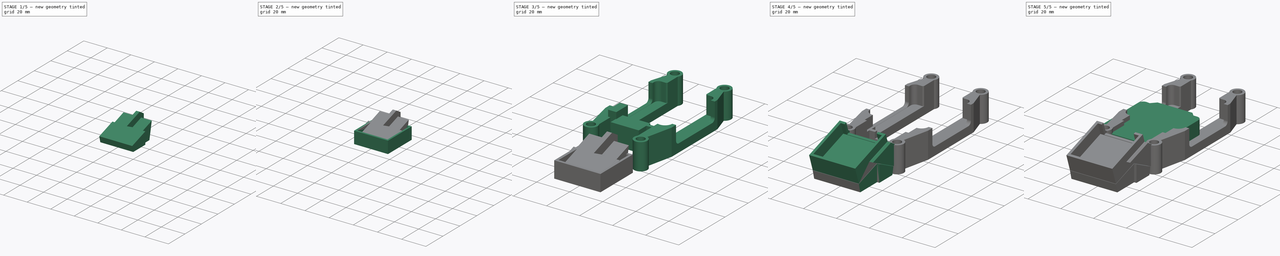
[diagram: build sequence overview — one tinted view per stage of 5, left to right]
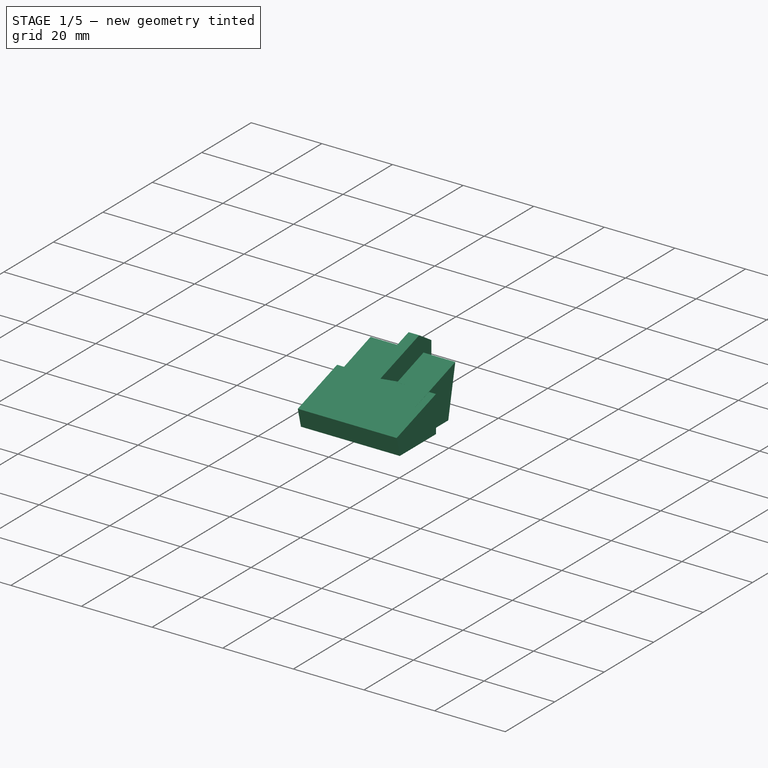
[diagram: stage 1 of 5 — iso view after this stage's code; geometry added in this stage tinted green]
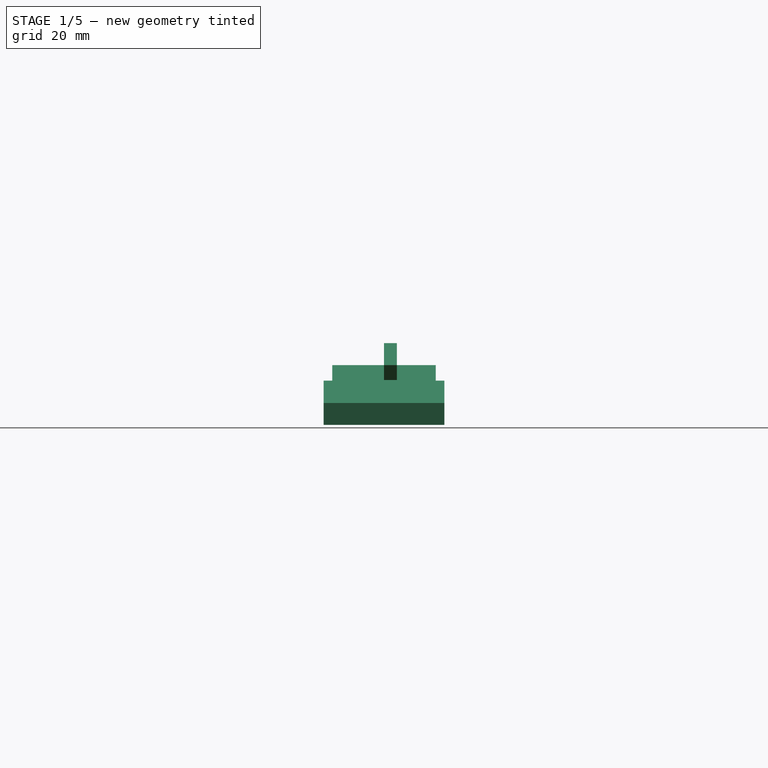
[diagram: stage 1 of 5 — front view after this stage's code; geometry added in this stage tinted green]
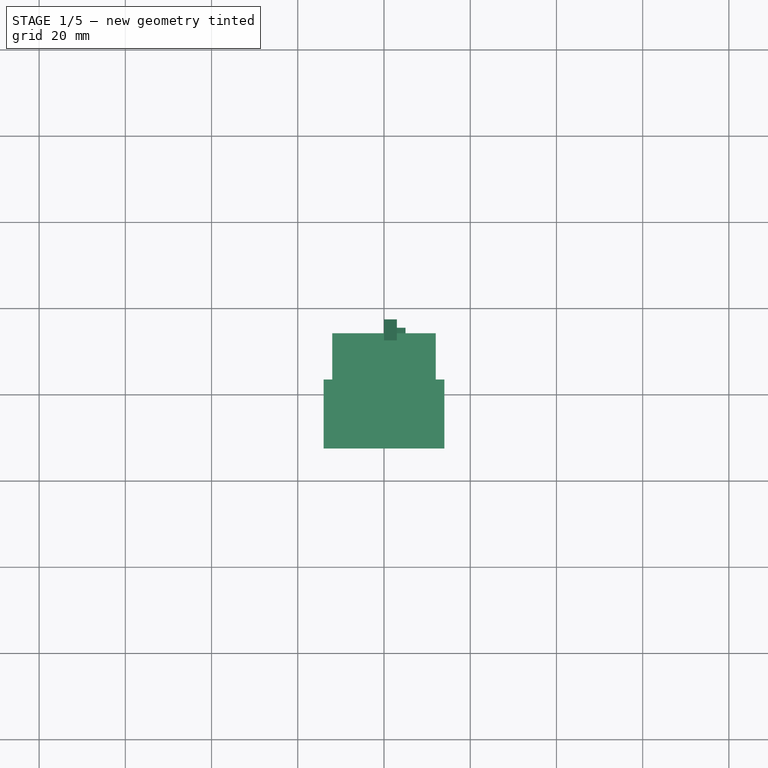
[diagram: stage 1 of 5 — top view after this stage's code; geometry added in this stage tinted green]
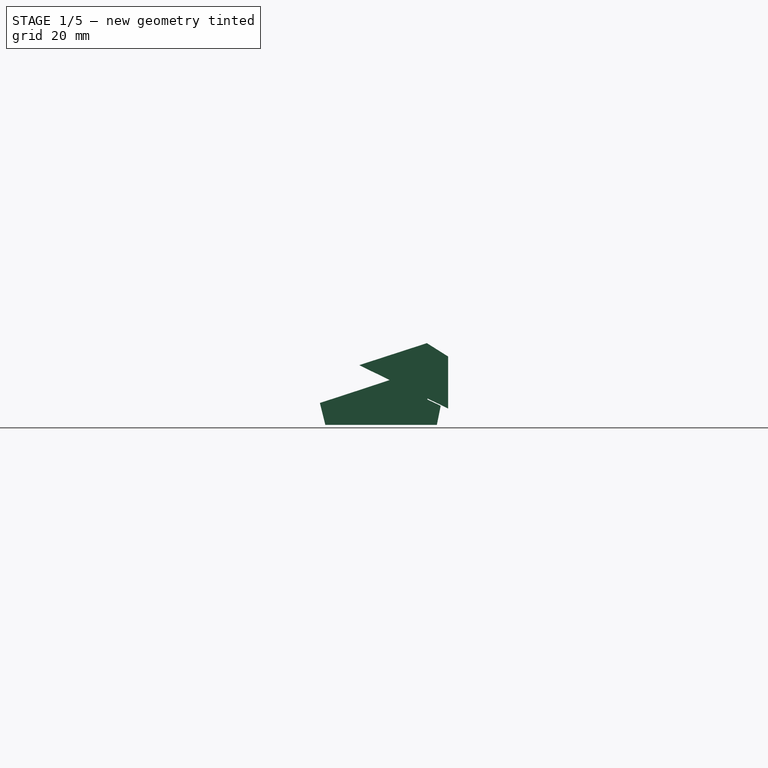
[diagram: stage 1 of 5 — right view after this stage's code; geometry added in this stage tinted green]
FCSTD DOCUMENT  (FreeCAD 0.19R24267 +99 (Git))
Label: fr7天空端
License: All rights reserved
LicenseURL: http://en.wikipedia.org/wiki/All_rights_reserved
objects: Sketcher::SketchObject×17, PartDesign::Pad×10, PartDesign::Body×9, PartDesign::Pocket×7, Part::Box×3, Part::Cut×3, PartDesign::Chamfer×2, Part::MultiFuse×1, Part::Fuse×1
note: 72 computed .brp shape members not serialized (recipe doc carries the construction recipe); baked Part::Feature solids carry a one-line shape summary decoded from their .brp

FEATURE [PartDesign::Body] Body002
  Group = -> [Sketch008,Pad002,Sketch009,Pad003,Sketch010,Pocket006]
  Origin = -> Origin002
  Placement = pos=(-0.6,-1.55281,28.8247) rot=(1,0,0;0.321141rad)
  Tip = -> Pocket006
FEATURE [Sketcher::SketchObject] Sketch011
  FullyConstrained = false
  MapMode = 5
  Placement = pos=(0,0,0) rot=(0.57735,0.57735,0.57735;2.0944rad)
  Support = -> [YZ_Plane003]
  sketch-geometry (4):
    g0: LineSegment StartX=-47.6987 StartY=18.9488 StartZ=0 EndX=-42.7761 EndY=15.8464 EndZ=0
    g1: LineSegment StartX=-42.7761 StartY=15.8464 StartZ=0 EndX=-42.7761 EndY=3.78236 EndZ=0
    g2: LineSegment StartX=-42.7761 StartY=3.78236 StartZ=0 EndX=-63.4121 EndY=13.8474 EndZ=0
    g3: LineSegment StartX=-63.4121 StartY=13.8474 StartZ=0 EndX=-47.6987 EndY=18.9488 EndZ=0
  constraints (5):
    c: Coincident(g0,g1)
    c: Vertical(g1)
    c: Coincident(g1,g2)
    c: Coincident(g2,g3)
    c: Coincident(g3,g0)
FEATURE [PartDesign::Pad] Pad004
  Direction = (1,1,1)
  Length = 3
  Length2 = 100
  Placement = pos=(0,0,0) rot=(0.57735,0.57735,0.57735;2.0944rad)
  Profile = -> Sketch011
  Type = 0
FEATURE [PartDesign::Body] Body003
  Group = -> [Sketch011,Pad004,Chamfer001]
  Origin = -> Origin003
  Placement = pos=(12.8,0,0) rot=(0,0,1;0rad)
  Tip = -> Chamfer001
FEATURE [Sketcher::SketchObject] Sketch013
  FullyConstrained = false
  MapMode = 5
  Placement = pos=(0,0,0) rot=(0.57735,0.57735,0.57735;2.0944rad)
  Support = -> [YZ_Plane005]
  sketch-geometry (6):
    g0: LineSegment StartX=-72.5116 StartY=5.02141 StartZ=0 EndX=-45.9556 EndY=13.8595 EndZ=0
    g1: LineSegment StartX=-45.9556 StartY=13.8595 StartZ=0 EndX=-48.8078 EndY=0 EndZ=0
    g2: LineSegment StartX=-48.8078 StartY=0 StartZ=0 EndX=-71.2568 EndY=0 EndZ=0
    g3: LineSegment StartX=-71.2568 StartY=0 StartZ=0 EndX=-72.5116 EndY=5.02141 EndZ=0
    g4: LineSegment StartX=-72.5629 StartY=5.20434 StartZ=0 EndX=-72.5116 EndY=5.02141 EndZ=0
    g5: LineSegment StartX=-45.9874 StartY=14.0468 StartZ=0 EndX=-45.9556 EndY=13.8595 EndZ=0
  constraints (10):
    c: Coincident(g0,g1)
    c: PointOnObject(g1,g-1)
    c: Coincident(g1,g2)
    c: PointOnObject(g2,g-1)
    c: Coincident(g2,g3)
    c: Coincident(g3,g0)
    c: Coincident(g4,g0)
    c: Distance(g4) = 0.19
    c: Coincident(g5,g0)
    c: Distance(g5) = 0.19
FEATURE [PartDesign::Pad] Pad006
  Direction = (1,1,1)
  Length = 24
  Length2 = 100
  Midplane = true
  Placement = pos=(0,0,0) rot=(0.57735,0.57735,0.57735;2.0944rad)
  Profile = -> Sketch013
  Type = 0
FEATURE [PartDesign::Body] Body005
  Group = -> [Sketch013,Pad006]
  Origin = -> Origin005
  Placement = pos=(0.2,0,0) rot=(0,0,1;0rad)
  Tip = -> Pad006
FEATURE [Sketcher::SketchObject] Sketch014
  FullyConstrained = false
  MapMode = 5
  Placement = pos=(0,0,0) rot=(0.57735,0.57735,0.57735;2.0944rad)
  Support = -> [YZ_Plane006]
  sketch-geometry (4):
    g0: LineSegment StartX=-56.6369 StartY=10.3194 StartZ=0 EndX=-44.5035 EndY=4.39802 EndZ=0
    g1: LineSegment StartX=-44.5035 StartY=4.39802 StartZ=0 EndX=-45.399 EndY=0 EndZ=0
    g2: LineSegment StartX=-45.399 StartY=0 StartZ=0 EndX=-56.6369 EndY=0 EndZ=0
    g3: LineSegment StartX=-56.6369 StartY=0 StartZ=0 EndX=-56.6369 EndY=10.3194 EndZ=0
  constraints (7):
    c: Coincident(g0,g1)
    c: PointOnObject(g1,g-1)
    c: Coincident(g1,g2)
    c: PointOnObject(g2,g-1)
    c: Coincident(g2,g3)
    c: Coincident(g3,g0)
    c: Vertical(g3)
FEATURE [PartDesign::Pad] Pad007
  Direction = (1,1,1)
  Length = 5
  Length2 = 100
  Placement = pos=(0,0,0) rot=(0.57735,0.57735,0.57735;2.0944rad)
  Profile = -> Sketch014
  Type = 0
FEATURE [PartDesign::Body] Body006
  Group = -> [Sketch014,Pad007]
  Origin = -> Origin006
  Placement = pos=(10.8,0,0) rot=(0,0,1;0rad)
  Tip = -> Pad007
FEATURE [Sketcher::SketchObject] Sketch015
  FullyConstrained = false
  MapMode = 5
  Placement = pos=(0,0,0) rot=(0.57735,0.57735,0.57735;2.0944rad)
  Support = -> [YZ_Plane007]
  sketch-geometry (4):
    g0: LineSegment StartX=-56.6369 StartY=10.3194 StartZ=0 EndX=-44.5035 EndY=4.39802 EndZ=0
    g1: LineSegment StartX=-44.5035 StartY=4.39802 StartZ=0 EndX=-45.399 EndY=0 EndZ=0
    g2: LineSegment StartX=-45.399 StartY=0 StartZ=0 EndX=-56.6369 EndY=0 EndZ=0
    g3: LineSegment StartX=-56.6369 StartY=0 StartZ=0 EndX=-56.6369 EndY=10.3194 EndZ=0
  constraints (7):
    c: Coincident(g0,g1)
    c: PointOnObject(g1,g-1)
    c: Coincident(g1,g2)
    c: PointOnObject(g2,g-1)
    c: Coincident(g2,g3)
    c: Coincident(g3,g0)
    c: Vertical(g3)
FEATURE [PartDesign::Pad] Pad008
  Direction = (1,1,1)
  Length = 5
  Length2 = 100
  Placement = pos=(0,0,0) rot=(0.57735,0.57735,0.57735;2.0944rad)
  Profile = -> Sketch015
  Type = 0
FEATURE [Sketcher::SketchObject] Sketch016
  FullyConstrained = false
  MapMode = 5
  Placement = pos=(0,0,0) rot=(0.57735,0.57735,0.57735;2.0944rad)
  Support = -> [YZ_Plane008]
  sketch-geometry (4):
    g0: LineSegment StartX=-72.5319 StartY=5.07364 StartZ=0 EndX=-56.6317 EndY=10.2659 EndZ=0
    g1: LineSegment StartX=-56.6317 StartY=10.2659 StartZ=0 EndX=-56.6317 EndY=0 EndZ=0
    g2: LineSegment StartX=-56.6317 StartY=0 StartZ=0 EndX=-71.2588 EndY=0 EndZ=0
    g3: LineSegment StartX=-71.2588 StartY=0 StartZ=0 EndX=-72.5319 EndY=5.07364 EndZ=0
  constraints (7):
    c: Coincident(g0,g1)
    c: PointOnObject(g1,g-1)
    c: Vertical(g1)
    c: Coincident(g1,g2)
    c: PointOnObject(g2,g-1)
    c: Coincident(g2,g3)
    c: Coincident(g3,g0)
FEATURE [PartDesign::Pad] Pad009
  Direction = (1,1,1)
  Length = 28
  Length2 = 100
  Midplane = true
  Placement = pos=(0,0,0) rot=(0.57735,0.57735,0.57735;2.0944rad)
  Profile = -> Sketch016
  Type = 0
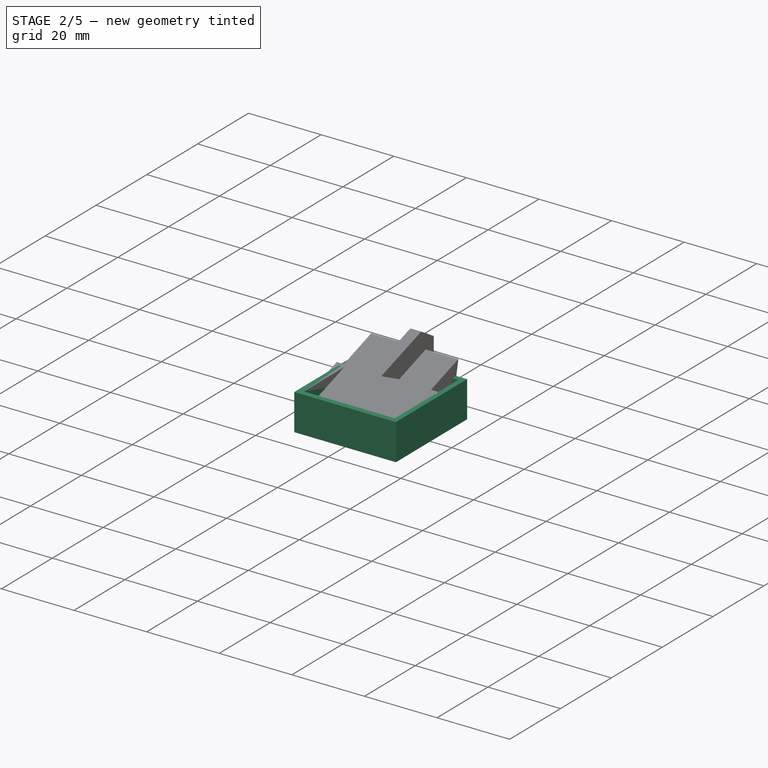
[diagram: stage 2 of 5 — iso view after this stage's code; geometry added in this stage tinted green]
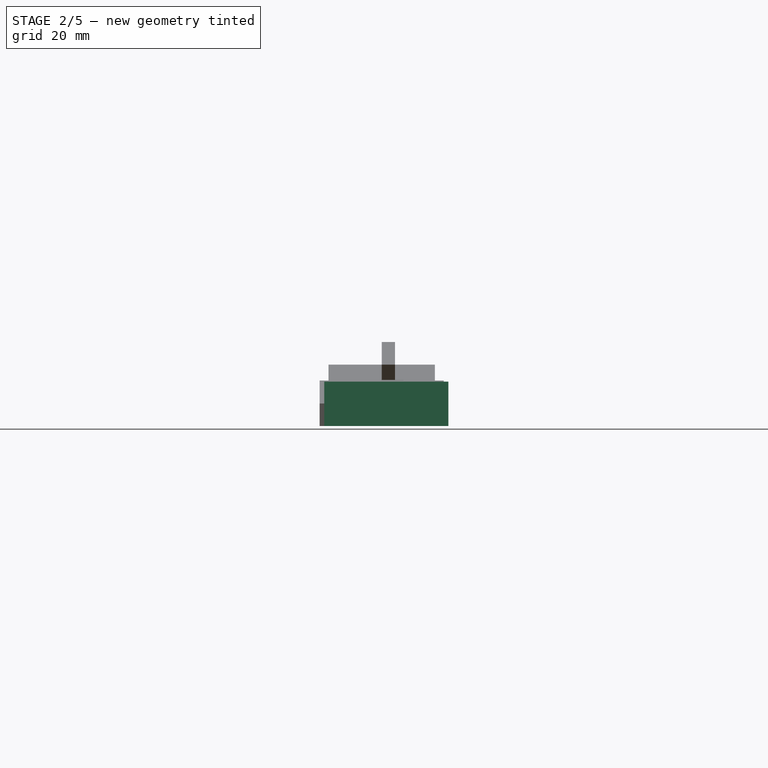
[diagram: stage 2 of 5 — front view after this stage's code; geometry added in this stage tinted green]
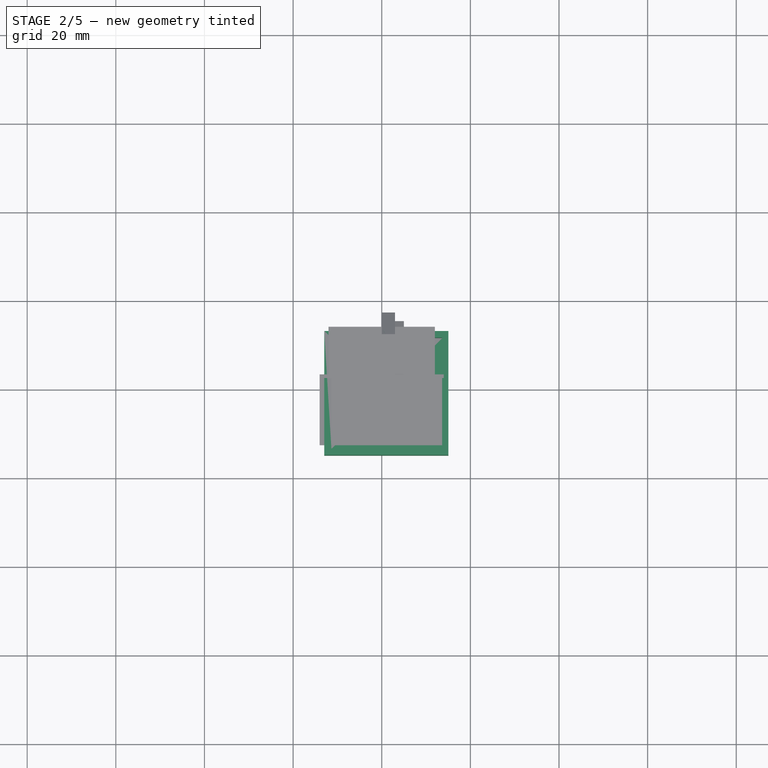
[diagram: stage 2 of 5 — top view after this stage's code; geometry added in this stage tinted green]
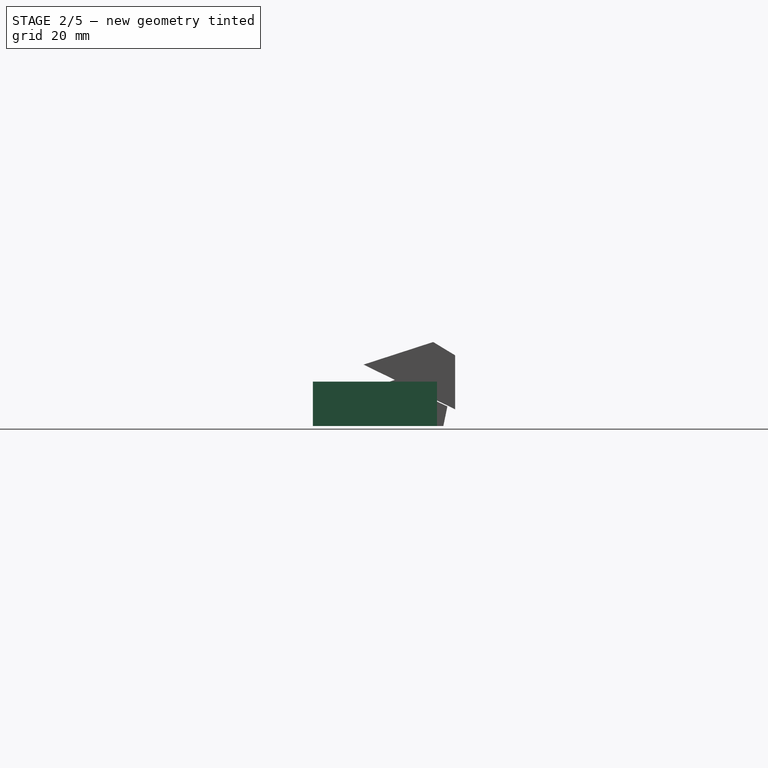
[diagram: stage 2 of 5 — right view after this stage's code; geometry added in this stage tinted green]
FEATURE [Sketcher::SketchObject] Sketch008
  FullyConstrained = false
  MapMode = 5
  Support = -> [XY_Plane002]
  sketch-geometry (8):
    g0: LineSegment StartX=-12.975 StartY=-46.8317 StartZ=0 EndX=15.025 EndY=-46.8317 EndZ=0
    g1: LineSegment StartX=15.025 StartY=-46.8317 StartZ=0 EndX=15.025 EndY=-74.8317 EndZ=0
    g2: LineSegment StartX=15.025 StartY=-74.8317 StartZ=0 EndX=-12.975 EndY=-74.8317 EndZ=0
    g3: LineSegment StartX=-12.975 StartY=-74.8317 StartZ=0 EndX=-12.975 EndY=-46.8317 EndZ=0
    g4: LineSegment StartX=-11.3635 StartY=-48.3289 StartZ=0 EndX=13.6365 EndY=-48.3289 EndZ=0
    g5: LineSegment StartX=13.6365 StartY=-48.3289 StartZ=0 EndX=13.6365 EndY=-73.3289 EndZ=0
    g6: LineSegment StartX=13.6365 StartY=-73.3289 StartZ=0 EndX=-11.3635 EndY=-73.3289 EndZ=0
    g7: LineSegment StartX=-11.3635 StartY=-73.3289 StartZ=0 EndX=-11.3635 EndY=-48.3289 EndZ=0
  constraints (20):
    c: Coincident(g0,g1)
    c: Coincident(g1,g2)
    c: Coincident(g2,g3)
    c: Coincident(g3,g0)
    c: Horizontal(g0)
    c: Horizontal(g2)
    c: Vertical(g1)
    c: Vertical(g3)
    c: Distance(g0) = 28
    c: Equal(g0,g3)
    c: Coincident(g4,g5)
    c: Coincident(g5,g6)
    c: Coincident(g6,g7)
    c: Coincident(g7,g4)
    c: Horizontal(g4)
    c: Horizontal(g6)
    c: Vertical(g5)
    c: Vertical(g7)
    c: Equal(g4,g7)
    c: Distance(g7) = 25
FEATURE [PartDesign::Pad] Pad002
  Direction = (1,1,1)
  Length = 10
  Length2 = 100
  Profile = -> Sketch008
  Type = 0
FEATURE [Sketcher::SketchObject] Sketch009
  FullyConstrained = false
  MapMode = 5
  Placement = pos=(0,0,0) rot=(1,0,0;3.14159rad)
  Support = -> [Pad002]
  sketch-geometry (4):
    g0: LineSegment StartX=-12.3427 StartY=74.2679 StartZ=0 EndX=14.2463 EndY=74.2679 EndZ=0
    g1: LineSegment StartX=14.2463 StartY=74.2679 StartZ=0 EndX=14.2463 EndY=48.0895 EndZ=0
    g2: LineSegment StartX=14.2463 StartY=48.0895 StartZ=0 EndX=-12.3427 EndY=48.0895 EndZ=0
    g3: LineSegment StartX=-12.3427 StartY=48.0895 StartZ=0 EndX=-12.3427 EndY=74.2679 EndZ=0
  constraints (8):
    c: Coincident(g0,g1)
    c: Coincident(g1,g2)
    c: Coincident(g2,g3)
    c: Coincident(g3,g0)
    c: Horizontal(g0)
    c: Horizontal(g2)
    c: Vertical(g1)
    c: Vertical(g3)
FEATURE [PartDesign::Pad] Pad003
  BaseFeature = -> Pad002
  Direction = (1,1,1)
  Length = 3
  Length2 = 100
  Profile = -> Sketch009
  Reversed = true
  Type = 0
FEATURE [Sketcher::SketchObject] Sketch010
  FullyConstrained = false
  MapMode = 5
  Placement = pos=(0,-48.3289,0) rot=(1,0,0;1.5708rad)
  Support = -> [Pad003]
  sketch-geometry (4):
    g0: LineSegment StartX=-8.96205 StartY=10.582 StartZ=0 EndX=10.4407 EndY=10.582 EndZ=0
    g1: LineSegment StartX=10.4407 StartY=10.582 StartZ=0 EndX=10.4407 EndY=3.22347 EndZ=0
    g2: LineSegment StartX=10.4407 StartY=3.22347 StartZ=0 EndX=-8.96205 EndY=3.22347 EndZ=0
    g3: LineSegment StartX=-8.96205 StartY=3.22347 StartZ=0 EndX=-8.96205 EndY=10.582 EndZ=0
  constraints (8):
    c: Coincident(g0,g1)
    c: Coincident(g1,g2)
    c: Coincident(g2,g3)
    c: Coincident(g3,g0)
    c: Horizontal(g0)
    c: Horizontal(g2)
    c: Vertical(g1)
    c: Vertical(g3)
FEATURE [PartDesign::Pocket] Pocket006
  BaseFeature = -> Pad003
  Length = 5
  Length2 = 100
  Profile = -> Sketch010
  Type = 0
FEATURE [Sketcher::SketchObject] Sketch012
  FullyConstrained = false
  MapMode = 5
  Placement = pos=(0,0,0) rot=(0.57735,0.57735,0.57735;2.0944rad)
  Support = -> [YZ_Plane004]
  sketch-geometry (4):
    g0: LineSegment StartX=-47.6987 StartY=18.9488 StartZ=0 EndX=-42.7598 EndY=15.959 EndZ=0
    g1: LineSegment StartX=-42.7598 StartY=15.959 StartZ=0 EndX=-42.7598 EndY=3.78236 EndZ=0
    g2: LineSegment StartX=-42.7598 StartY=3.78236 StartZ=0 EndX=-63.4121 EndY=13.8474 EndZ=0
    g3: LineSegment StartX=-63.4121 StartY=13.8474 StartZ=0 EndX=-47.6987 EndY=18.9488 EndZ=0
  constraints (5):
    c: Coincident(g0,g1)
    c: Vertical(g1)
    c: Coincident(g1,g2)
    c: Coincident(g2,g3)
    c: Coincident(g3,g0)
FEATURE [PartDesign::Pad] Pad005
  Direction = (1,1,1)
  Length = 3
  Length2 = 100
  Placement = pos=(0,0,0) rot=(0.57735,0.57735,0.57735;2.0944rad)
  Profile = -> Sketch012
  Type = 0
FEATURE [PartDesign::Chamfer] Chamfer
  Angle = 45
  Base = -> Pad005 [Edge11]
  BaseFeature = -> Pad005
  ChamferType = 0
  FlipDirection = false
  Placement = pos=(0,0,0) rot=(0.57735,0.57735,0.57735;2.0944rad)
  Size = 1
  Size2 = 1
  SupportTransform = false
FEATURE [PartDesign::Body] Body004
  Group = -> [Sketch012,Pad005,Chamfer]
  Origin = -> Origin004
  Placement = pos=(-15,0,0) rot=(0,0,1;0rad)
  Tip = -> Chamfer
FEATURE [PartDesign::Chamfer] Chamfer001
  Angle = 45
  Base = -> Pad004 [Edge12]
  BaseFeature = -> Pad004
  ChamferType = 0
  FlipDirection = false
  Placement = pos=(0,0,0) rot=(0.57735,0.57735,0.57735;2.0944rad)
  Size = 1
  Size2 = 1
  SupportTransform = false
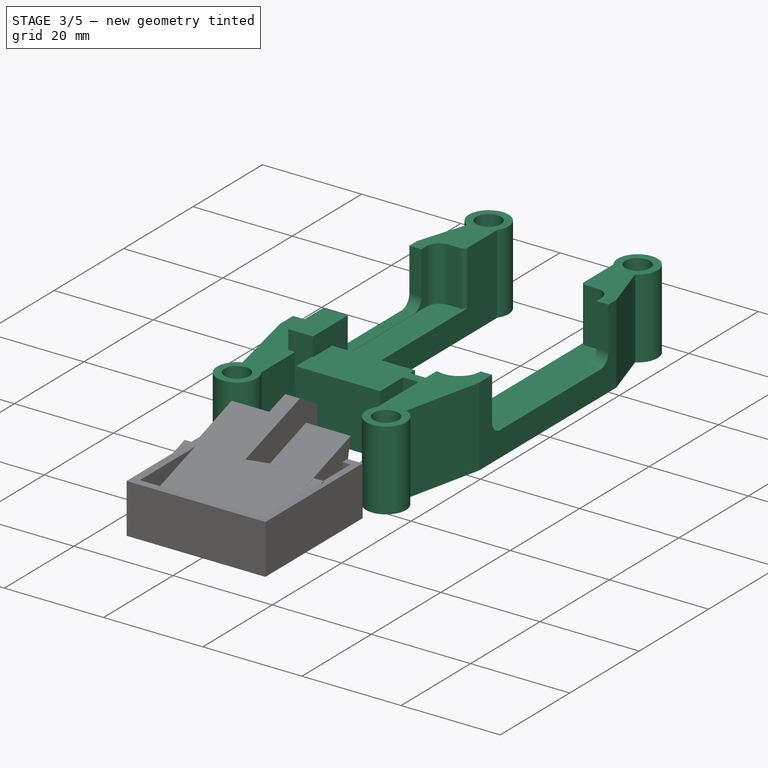
[diagram: stage 3 of 5 — iso view after this stage's code; geometry added in this stage tinted green]
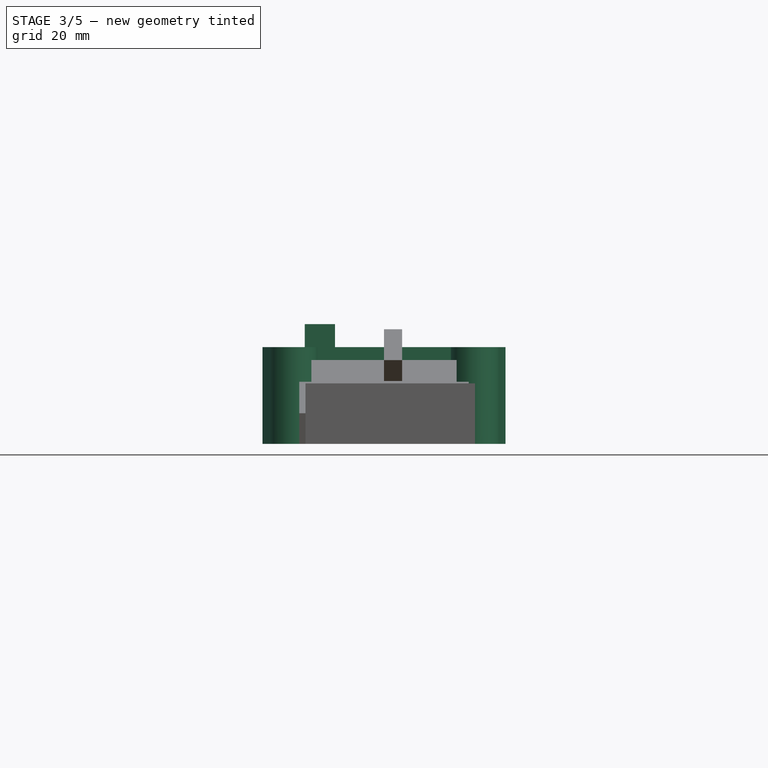
[diagram: stage 3 of 5 — front view after this stage's code; geometry added in this stage tinted green]
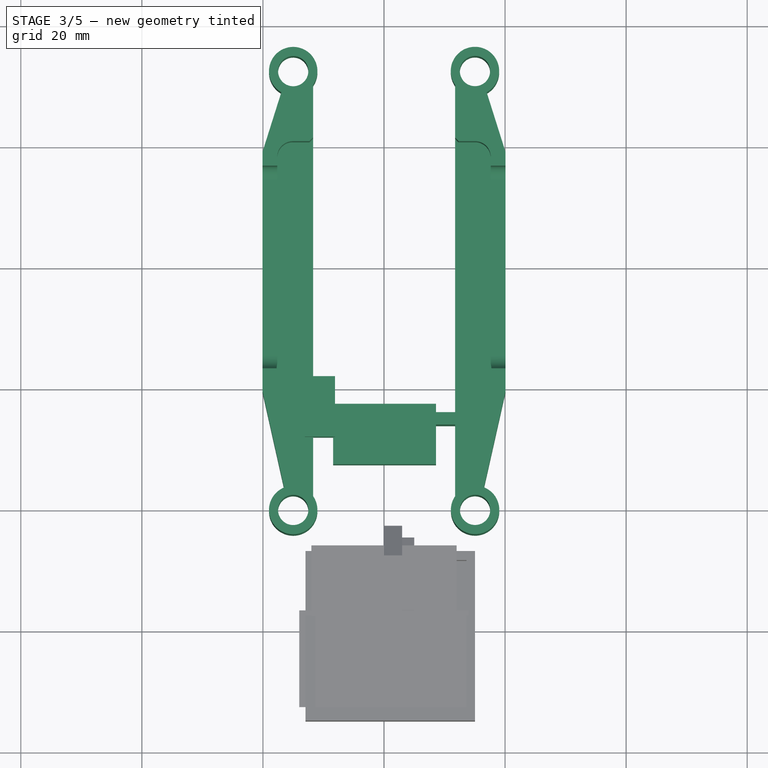
[diagram: stage 3 of 5 — top view after this stage's code; geometry added in this stage tinted green]
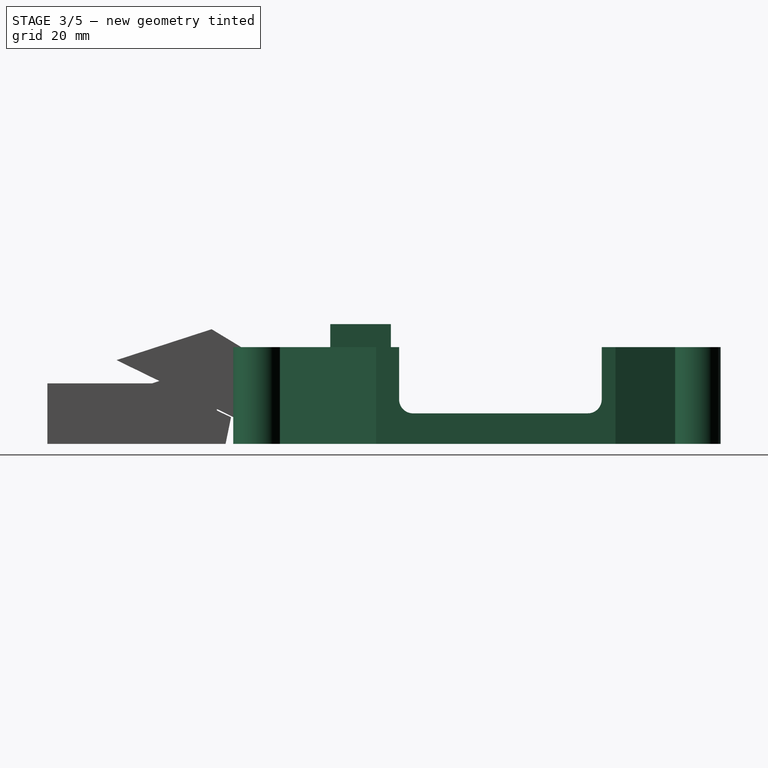
[diagram: stage 3 of 5 — right view after this stage's code; geometry added in this stage tinted green]
FEATURE [PartDesign::Body] Body
  Group = -> [Sketch,Pad,Sketch001,Pocket,Sketch002,Pocket001,Sketch003,Pocket002,Sketch005,Pocket003]
  Origin = -> Origin
  Placement = pos=(3.8,19.3,2.6) rot=(0,0,1;0rad)
  Tip = -> Pocket003
FEATURE [PartDesign::Pad] Pad001
  Direction = (1,1,1)
  Length = 16
  Length2 = 100
  Profile = -> Sketch004
  Type = 0
FEATURE [Sketcher::SketchObject] Sketch006
  FullyConstrained = false
  MapMode = 5
  Placement = pos=(0,0,16) rot=(0,0,1;0rad)
  Support = -> [Pad001]
  sketch-geometry (14):
    g0: LineSegment StartX=-12.3144 StartY=20.7871 StartZ=0 EndX=-15.0529 EndY=20.7871 EndZ=0
    g1: ArcOfCircle CenterX=-15.0529 CenterY=18.2049 CenterZ=0 NormalX=0 NormalY=0 NormalZ=1 AngleXU=0 Radius=2.58217 StartAngle=1.5708 EndAngle=3.10821
    g2: LineSegment StartX=-17.6336 StartY=18.2911 StartZ=0 EndX=-17.6336 EndY=-15.7698 EndZ=0
    g3: ArcOfCircle CenterX=-13.4219 CenterY=-16.7377 CenterZ=0 NormalX=0 NormalY=0 NormalZ=1 AngleXU=0 Radius=4.32148 StartAngle=2.91571 EndAngle=5.00241
    g4: LineSegment StartX=-12.186 StartY=-20.8787 StartZ=0 EndX=0 EndY=-20.8787 EndZ=0
    g5: LineSegment StartX=-12.3144 StartY=20.7871 StartZ=0 EndX=-9.77579 EndY=23.3546 EndZ=0
    g6: LineSegment StartX=-9.77579 StartY=23.3546 StartZ=0 EndX=0 EndY=23.3546 EndZ=0
    g7: LineSegment StartX=12.3144 StartY=20.7871 StartZ=0 EndX=15.0529 EndY=20.7871 EndZ=0
    g8: ArcOfCircle CenterX=15.0529 CenterY=18.2049 CenterZ=0 NormalX=0 NormalY=0 NormalZ=1 AngleXU=0 Radius=2.58217 StartAngle=0.0333807 EndAngle=1.5708
    g9: LineSegment StartX=17.6336 StartY=18.2911 StartZ=0 EndX=17.6336 EndY=-15.7698 EndZ=0
    g10: ArcOfCircle CenterX=13.4219 CenterY=-16.7377 CenterZ=0 NormalX=0 NormalY=0 NormalZ=1 AngleXU=0 Radius=4.32148 StartAngle=4.42237 EndAngle=6.50907
    g11: LineSegment StartX=12.186 StartY=-20.8787 StartZ=0 EndX=0 EndY=-20.8787 EndZ=0
    g12: LineSegment StartX=12.3144 StartY=20.7871 StartZ=0 EndX=9.77579 EndY=23.3546 EndZ=0
    g13: LineSegment StartX=9.77579 StartY=23.3546 StartZ=0 EndX=0 EndY=23.3546 EndZ=0
  constraints (22):
    c: Horizontal(g0)
    c: Tangent(g0,g1) = -1.5708
    c: Coincident(g1,g2)
    c: Vertical(g2)
    c: Coincident(g3,g4)
    c: PointOnObject(g4,g-2)
    c: Horizontal(g4)
    c: Coincident(g2,g3)
    c: Coincident(g0,g5)
    c: Coincident(g5,g6)
    c: PointOnObject(g6,g-2)
    c: Horizontal(g6)
    c: Horizontal(g7)
    c: Tangent(g7,g8) = 1.5708
    c: Coincident(g8,g9)
    c: Vertical(g9)
    c: Coincident(g10,g11)
    c: Horizontal(g11)
    c: Coincident(g9,g10)
    c: Coincident(g7,g12)
    c: Coincident(g12,g13)
    c: Horizontal(g13)
FEATURE [PartDesign::Pocket] Pocket004
  BaseFeature = -> Pad001
  Length = 11
  Length2 = 100
  Profile = -> Sketch006
  Type = 0
FEATURE [Sketcher::SketchObject] Sketch007
  FullyConstrained = false
  MapMode = 5
  Placement = pos=(20.0704,0,0) rot=(0.57735,0.57735,0.57735;2.0944rad)
  Support = -> [Pad001]
  sketch-geometry (6):
    g0: LineSegment StartX=-16.7363 StartY=16.5759 StartZ=0 EndX=16.7363 EndY=16.5759 EndZ=0
    g1: LineSegment StartX=-16.7363 StartY=16.5759 StartZ=0 EndX=-16.7363 EndY=7.34546 EndZ=0
    g2: ArcOfCircle CenterX=-14.4464 CenterY=7.34546 CenterZ=0 NormalX=0 NormalY=0 NormalZ=1 AngleXU=0 Radius=2.28993 StartAngle=3.14159 EndAngle=4.71239
    g3: LineSegment StartX=-14.4464 StartY=5.05552 StartZ=0 EndX=14.4464 EndY=5.05552 EndZ=0
    g4: ArcOfCircle CenterX=14.4464 CenterY=7.34546 CenterZ=0 NormalX=0 NormalY=0 NormalZ=1 AngleXU=0 Radius=2.28993 StartAngle=4.71239 EndAngle=6.28319
    g5: LineSegment StartX=16.7363 StartY=7.34546 StartZ=0 EndX=16.7363 EndY=16.5759 EndZ=0
  constraints (12):
    c: Coincident(g0,g1)
    c: Vertical(g1)
    c: Tangent(g1,g2) = -1.5708
    c: Horizontal(g3)
    c: Tangent(g3,g4) = -1.5708
    c: Coincident(g4,g5)
    c: Coincident(g5,g0)
    c: Vertical(g5)
    c: Tangent(g2,g3) = -1.5708
    c: Tangent(g4,g5) = -1.5708
    c: Horizontal(g4,g2)
    c: Symmetric(g0,g0,g-2)
FEATURE [PartDesign::Pocket] Pocket005
  BaseFeature = -> Pocket004
  Length = 56
  Length2 = 100
  Profile = -> Sketch007
  Type = 0
FEATURE [PartDesign::Body] Body001
  Group = -> [Sketch004,Pad001,Sketch006,Pocket004,Sketch007,Pocket005]
  Origin = -> Origin001
  Tip = -> Pocket005
FEATURE [Part::Box] Box  label="立方体"
  AttacherType = Attacher::AttachEngine3D
  Height = 10
  Length = 5
  Placement = pos=(-13.1,-28.1,9.8) rot=(0,0,1;0rad)
  Width = 10
FEATURE [Part::Box] Box002  label="立方体002"
  AttacherType = Attacher::AttachEngine3D
  Height = 10
  Length = 17
  Placement = pos=(-8.4,-32.6,6) rot=(0,0,1;0rad)
  Width = 10
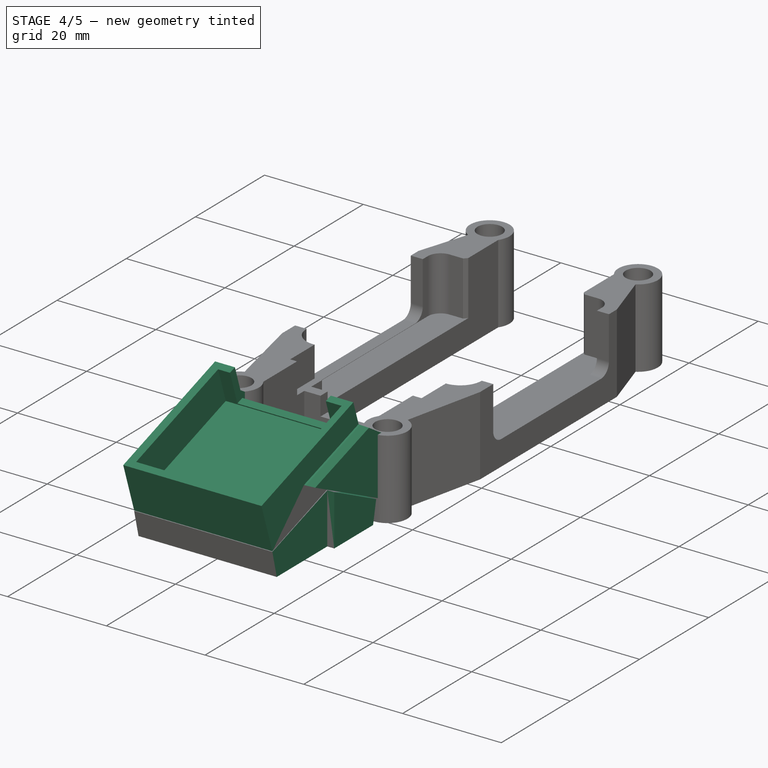
[diagram: stage 4 of 5 — iso view after this stage's code; geometry added in this stage tinted green]
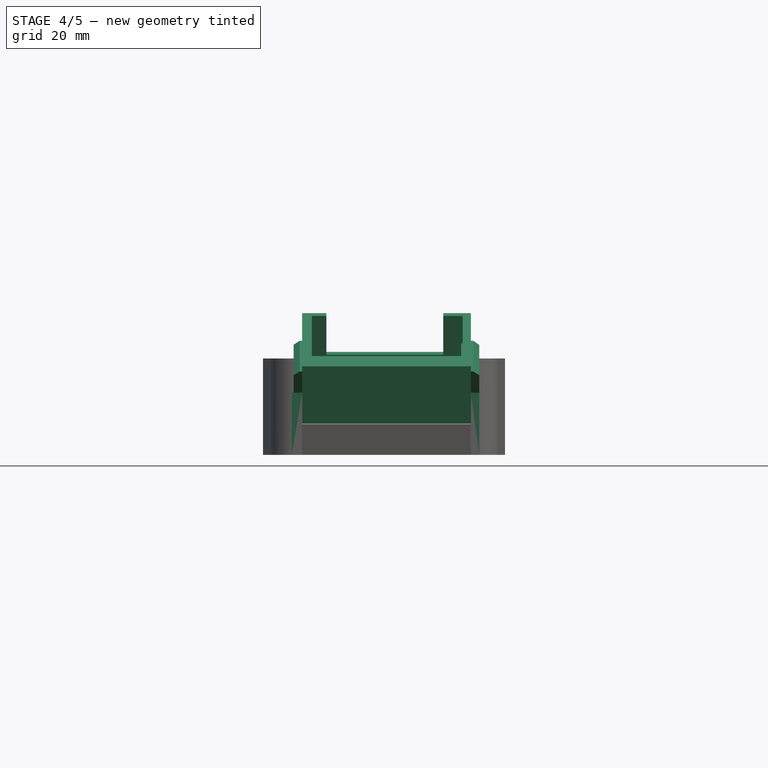
[diagram: stage 4 of 5 — front view after this stage's code; geometry added in this stage tinted green]
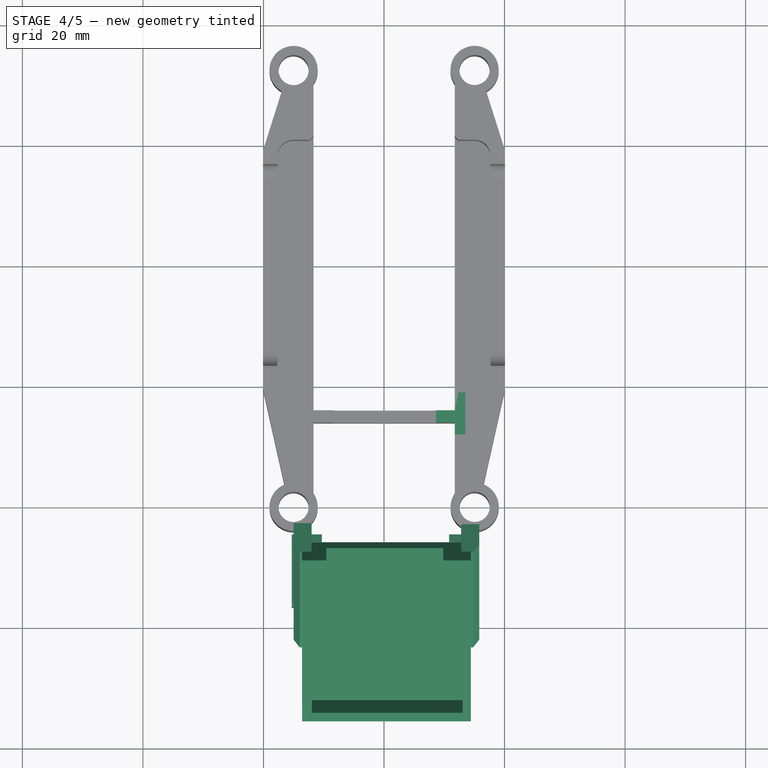
[diagram: stage 4 of 5 — top view after this stage's code; geometry added in this stage tinted green]
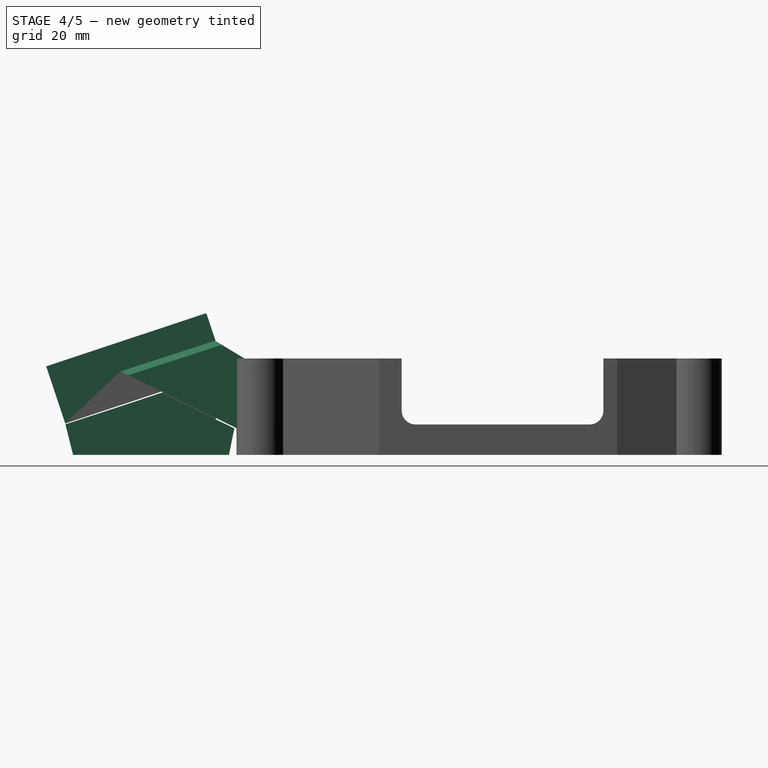
[diagram: stage 4 of 5 — right view after this stage's code; geometry added in this stage tinted green]
FEATURE [Part::Box] Box001  label="立方体001"
  AttacherType = Attacher::AttachEngine3D
  Height = 10
  Length = 5
  Placement = pos=(8.5,-28.1,10.2) rot=(0,0,1;0rad)
  Width = 10
FEATURE [Part::Cut] Cut
  Base = -> Body001
  Tool = -> Box
FEATURE [Part::Cut] Cut001
  Base = -> Cut
  Tool = -> Box001
FEATURE [Part::Cut] Cut002
  Base = -> Cut001
  Tool = -> Box002
FEATURE [PartDesign::Body] Body007
  Group = -> [Sketch015,Pad008]
  Origin = -> Origin007
  Placement = pos=(-15.3,0,0) rot=(0,0,1;0rad)
  Tip = -> Pad008
FEATURE [Part::MultiFuse] Fusion
  Shapes = -> [Body007,Body006,Body005,Body004,Body003,Body002,Cut002]
FEATURE [PartDesign::Body] Body008
  Group = -> [Sketch016,Pad009]
  Origin = -> Origin008
  Placement = pos=(0.4,0,0) rot=(0,0,1;0rad)
  Tip = -> Pad009
FEATURE [Part::Fuse] Fusion001
  Base = -> Fusion
  Tool = -> Body008
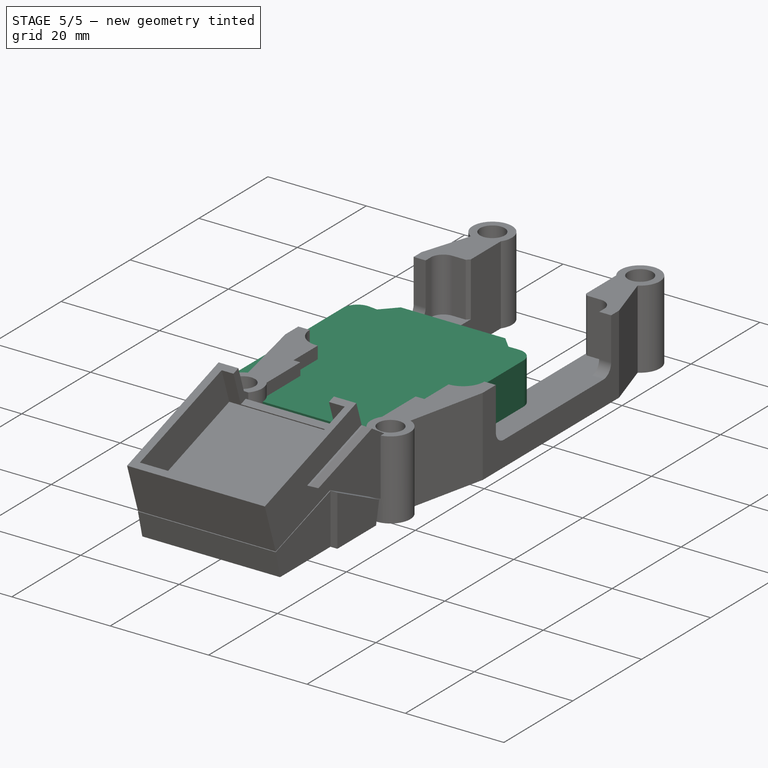
[diagram: stage 5 of 5 — iso view after this stage's code; geometry added in this stage tinted green]
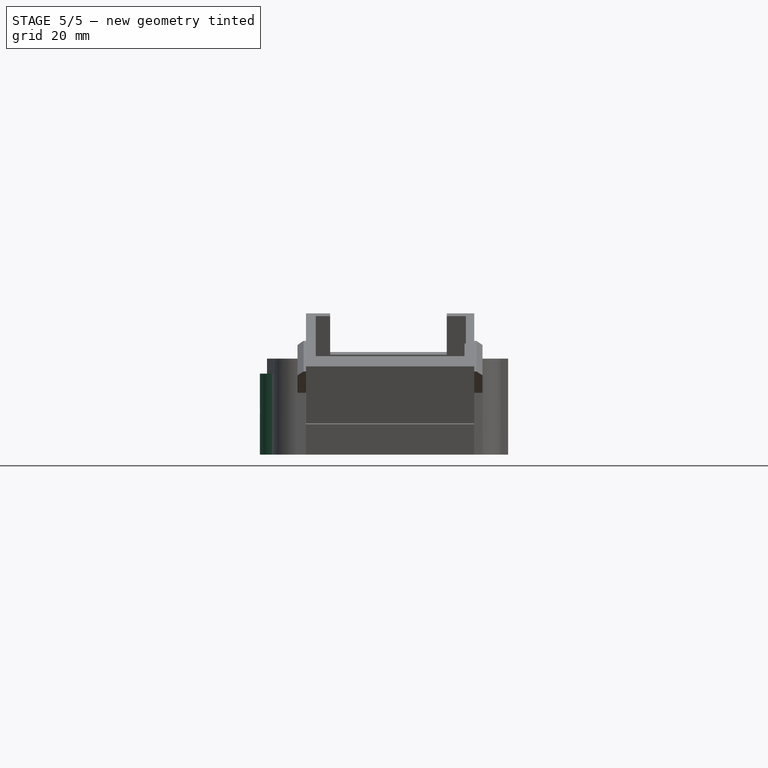
[diagram: stage 5 of 5 — front view after this stage's code; geometry added in this stage tinted green]
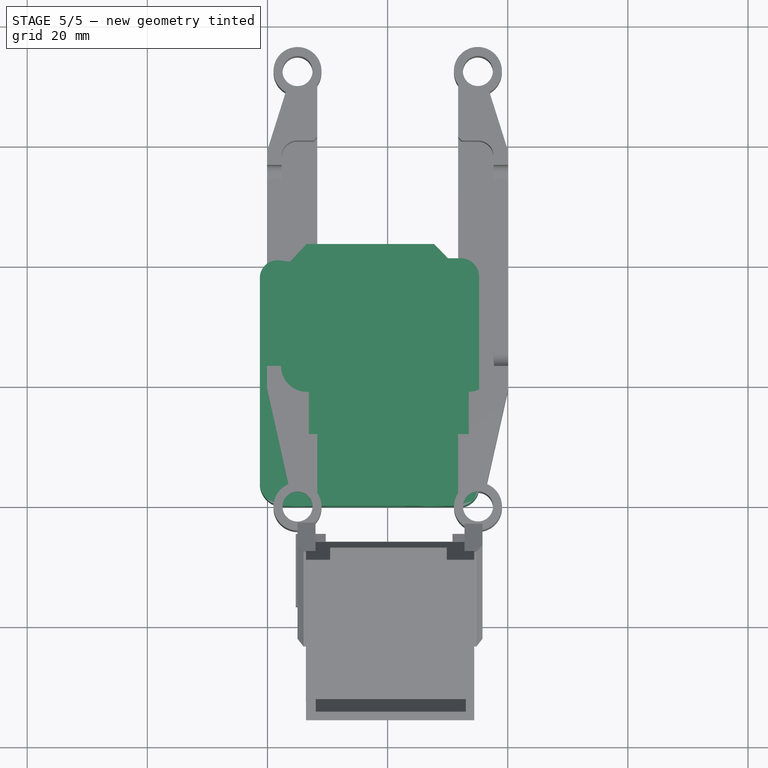
[diagram: stage 5 of 5 — top view after this stage's code; geometry added in this stage tinted green]
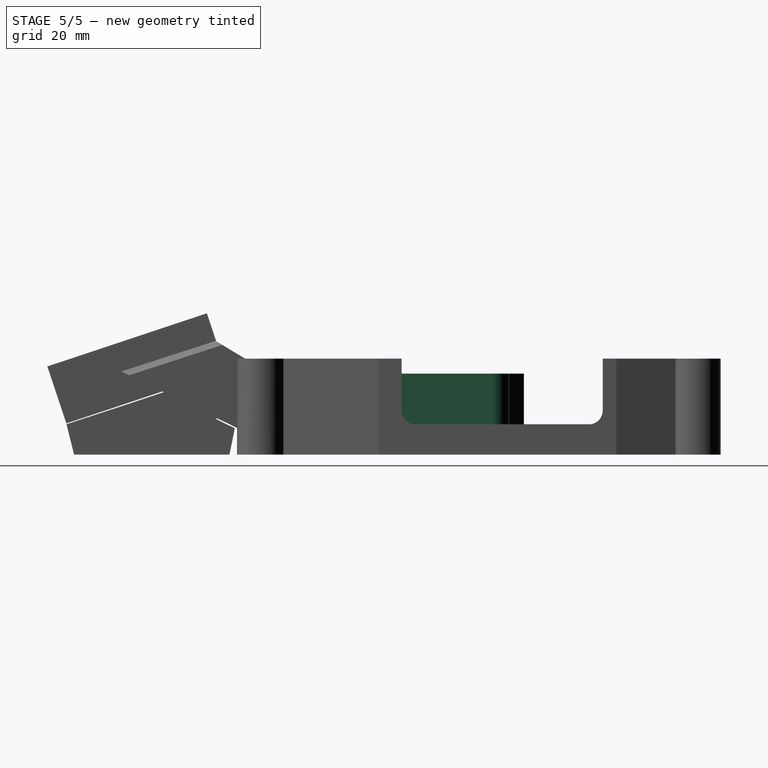
[diagram: stage 5 of 5 — right view after this stage's code; geometry added in this stage tinted green]
FEATURE [Sketcher::SketchObject] Sketch
  FullyConstrained = false
  sketch-geometry (12):
    g0: LineSegment StartX=-16.2545 StartY=0.670954 StartZ=0 EndX=-13.4843 EndY=3.61239 EndZ=0
    g1: LineSegment StartX=-13.4843 StartY=3.61239 StartZ=0 EndX=7.73943 EndY=3.61239 EndZ=0
    g2: LineSegment StartX=7.73943 StartY=3.61239 StartZ=0 EndX=10.0415 EndY=1.23935 EndZ=0
    g3: LineSegment StartX=10.0415 StartY=1.23935 StartZ=0 EndX=12.187 EndY=1.23935 EndZ=0
    g4: ArcOfCircle CenterX=12.187 CenterY=-1.80178 CenterZ=0 NormalX=0 NormalY=0 NormalZ=1 AngleXU=0 Radius=3.04113 StartAngle=1e-16 EndAngle=1.5708
    g5: LineSegment StartX=15.2281 StartY=-1.80178 StartZ=0 EndX=15.2281 EndY=-36.8194 EndZ=0
    g6: ArcOfCircle CenterX=11.9794 CenterY=-36.8194 CenterZ=0 NormalX=0 NormalY=0 NormalZ=1 AngleXU=0 Radius=3.24868 StartAngle=4.48937 EndAngle=6.28319
    g7: LineSegment StartX=11.2609 StartY=-39.9876 StartZ=0 EndX=-17.4198 EndY=-39.9876 EndZ=0
    g8: ArcOfCircle CenterX=-17.4198 CenterY=-36.1289 CenterZ=0 NormalX=0 NormalY=0 NormalZ=1 AngleXU=0 Radius=3.85872 StartAngle=3.20298 EndAngle=4.71239
    g9: LineSegment StartX=-21.2713 StartY=-36.3656 StartZ=0 EndX=-21.2713 EndY=-2.01894 EndZ=0
    g10: ArcOfCircle CenterX=-18.3529 CenterY=-2.01894 CenterZ=0 NormalX=0 NormalY=0 NormalZ=1 AngleXU=0 Radius=2.91836 StartAngle=1.45273 EndAngle=3.14159
    g11: LineSegment StartX=-18.0091 StartY=0.879098 StartZ=0 EndX=-16.2545 EndY=0.670954 EndZ=0
  constraints (19):
    c: Coincident(g0,g1)
    c: Horizontal(g1)
    c: Coincident(g1,g2)
    c: Coincident(g2,g3)
    c: Horizontal(g3)
    c: Tangent(g3,g4) = 1.5708
    c: Tangent(g4,g5) = 1.5708
    c: Tangent(g5,g6) = 1.5708
    c: Coincident(g6,g7)
    c: Horizontal(g7)
    c: Tangent(g7,g8) = 1.5708
    c: Coincident(g8,g9)
    c: Tangent(g9,g10) = 1.5708
    c: Tangent(g10,g11) = 1.5708
    c: Coincident(g11,g0)
    c: Distance(g9,g4) = 36.5
    c: Vertical(g5)
    c: Vertical(g9)
    c: Distance(g1,g7) = 43.6
FEATURE [PartDesign::Pad] Pad
  Direction = (1,1,1)
  Length = 13.5
  Length2 = 100
  Profile = -> Sketch
  Type = 0
FEATURE [Sketcher::SketchObject] Sketch001
  FullyConstrained = false
  MapMode = 5
  Placement = pos=(15.2281,0,0) rot=(0.57735,0.57735,0.57735;2.0944rad)
  Support = -> [Pad]
  sketch-geometry (6):
    g0: LineSegment StartX=-32.706 StartY=6.74946 StartZ=0 EndX=-19.3355 EndY=6.74946 EndZ=0
    g1: LineSegment StartX=-19.3355 StartY=6.74946 StartZ=0 EndX=-19.3355 EndY=3.98859 EndZ=0
    g2: LineSegment StartX=-19.3355 StartY=3.98859 StartZ=0 EndX=-32.706 EndY=3.98859 EndZ=0
    g3: LineSegment StartX=-32.706 StartY=3.98859 StartZ=0 EndX=-32.706 EndY=6.74946 EndZ=0
    g4: Circle CenterX=-33.9263 CenterY=8.6445 CenterZ=0 NormalX=0 NormalY=0 NormalZ=1 AngleXU=0 Radius=0.768806
    g5: Circle CenterX=-25.7876 CenterY=8.54229 CenterZ=0 NormalX=0 NormalY=0 NormalZ=1 AngleXU=0 Radius=0.768806
  constraints (8):
    c: Coincident(g0,g1)
    c: Coincident(g1,g2)
    c: Coincident(g2,g3)
    c: Coincident(g3,g0)
    c: Horizontal(g0)
    c: Horizontal(g2)
    c: Vertical(g1)
    c: Vertical(g3)
FEATURE [PartDesign::Pocket] Pocket
  BaseFeature = -> Pad
  Length = 1
  Length2 = 100
  Profile = -> Sketch001
  Type = 0
FEATURE [Sketcher::SketchObject] Sketch002
  FullyConstrained = false
  MapMode = 5
  Placement = pos=(-21.2713,0,0) rot=(0.57735,-0.57735,-0.57735;2.0944rad)
  Support = -> [Pocket]
  sketch-geometry (4):
    g0: ArcOfCircle CenterX=28.9267 CenterY=7.59628 CenterZ=0 NormalX=0 NormalY=0 NormalZ=1 AngleXU=0 Radius=1.76997 StartAngle=1.5708 EndAngle=4.71239
    g1: ArcOfCircle CenterX=35.1338 CenterY=7.59628 CenterZ=0 NormalX=0 NormalY=0 NormalZ=1 AngleXU=0 Radius=1.76997 StartAngle=4.71239 EndAngle=7.85398
    g2: LineSegment StartX=28.9267 StartY=5.82631 StartZ=0 EndX=35.1338 EndY=5.82631 EndZ=0
    g3: LineSegment StartX=28.9267 StartY=9.36626 StartZ=0 EndX=35.1338 EndY=9.36626 EndZ=0
  constraints (6):
    c: Tangent(g0,g3) = 1.5708
    c: Tangent(g0,g2) = -1.5708
    c: Tangent(g2,g1) = -1.5708
    c: Tangent(g3,g1) = 1.5708
    c: Horizontal(g2)
    c: Equal(g0,g1)
FEATURE [PartDesign::Pocket] Pocket001
  BaseFeature = -> Pocket
  Length = 1
  Length2 = 100
  Profile = -> Sketch002
  Type = 0
FEATURE [Sketcher::SketchObject] Sketch003
  ExternalGeometry = -> [Pocket001]
  FullyConstrained = true
  MapMode = 5
  Placement = pos=(0,3.61239,0) rot=(0,0.707107,0.707107;3.14159rad)
  Support = -> [Pocket001]
  sketch-geometry (8):
    g0: LineSegment StartX=0.12242 StartY=9.5 StartZ=0 EndX=5.62242 EndY=9.5 EndZ=0
    g1: LineSegment StartX=5.62242 StartY=9.5 StartZ=0 EndX=5.62242 EndY=4 EndZ=0
    g2: LineSegment StartX=5.62242 StartY=4 StartZ=0 EndX=0.12242 EndY=4 EndZ=0
    g3: LineSegment StartX=0.12242 StartY=4 StartZ=0 EndX=0.12242 EndY=9.5 EndZ=0
    g4: LineSegment StartX=5.62242 StartY=9.5 StartZ=0 EndX=5.62242 EndY=13.5 EndZ=0
    g5: LineSegment StartX=5.62242 StartY=4 StartZ=0 EndX=5.62242 EndY=0 EndZ=0
    g6: LineSegment StartX=5.62242 StartY=4 StartZ=0 EndX=13.4843 EndY=4 EndZ=0
    g7: LineSegment StartX=0.12242 StartY=4 StartZ=0 EndX=-7.73943 EndY=4 EndZ=0
  constraints (24):
    c: Coincident(g0,g1)
    c: Coincident(g1,g2)
    c: Coincident(g2,g3)
    c: Coincident(g3,g0)
    c: Horizontal(g0)
    c: Horizontal(g2)
    c: Vertical(g1)
    c: Vertical(g3)
    c: Distance(g3) = 5.5
    c: Distance(g2) = 5.5
    c: Coincident(g4,g0)
    c: PointOnObject(g4,g-5)
    c: Vertical(g4)
    c: Coincident(g5,g1)
    c: PointOnObject(g5,g-6)
    c: Vertical(g5)
    c: Coincident(g6,g1)
    c: PointOnObject(g6,g-4)
    c: Horizontal(g6)
    c: Coincident(g7,g2)
    c: PointOnObject(g7,g-3)
    c: Horizontal(g7)
    c: Equal(g7,g6)
    c: Equal(g4,g5)
FEATURE [PartDesign::Pocket] Pocket002
  BaseFeature = -> Pocket001
  Length = 1
  Length2 = 100
  Profile = -> Sketch003
  Type = 0
FEATURE [Sketcher::SketchObject] Sketch004
  FullyConstrained = false
  MapMode = 5
  Support = -> [XY_Plane001]
  sketch-geometry (24):
    g0: Circle CenterX=-15 CenterY=32.3587 CenterZ=0 NormalX=0 NormalY=0 NormalZ=1 AngleXU=0 Radius=2.5
    g1: ArcOfCircle CenterX=-15 CenterY=32.3587 CenterZ=0 NormalX=0 NormalY=0 NormalZ=1 AngleXU=0 Radius=4 StartAngle=5.68134 EndAngle=10.484
    g2: Circle CenterX=-15 CenterY=-40.1413 CenterZ=0 NormalX=0 NormalY=0 NormalZ=1 AngleXU=0 Radius=2.5
    g3: ArcOfCircle CenterX=-15 CenterY=-40.1413 CenterZ=0 NormalX=0 NormalY=0 NormalZ=1 AngleXU=0 Radius=4 StartAngle=1.95683 EndAngle=6.88503
    g4: GeomPoint X=-9.65632 Y=22.8595 Z=0
    g5: GeomPoint X=-15.0638 Y=29.8595 Z=0
    g6: LineSegment StartX=-16.9584 StartY=28.8709 StartZ=0 EndX=-20.0704 EndY=19.0207 EndZ=0
    g7: LineSegment StartX=-20.0704 StartY=19.0207 StartZ=0 EndX=-20.0704 EndY=-20.521 EndZ=0
    g8: LineSegment StartX=-20.0704 StartY=-20.521 StartZ=0 EndX=-16.506 EndY=-36.4357 EndZ=0
    g9: LineSegment StartX=-11.7028 StartY=-37.8767 StartZ=0 EndX=-11.7028 EndY=-26.0339 EndZ=0
    g10: Circle CenterX=15.027 CenterY=32.3737 CenterZ=0 NormalX=0 NormalY=0 NormalZ=1 AngleXU=0 Radius=2.5
    g11: ArcOfCircle CenterX=15.027 CenterY=32.3737 CenterZ=0 NormalX=0 NormalY=0 NormalZ=1 AngleXU=0 Radius=4 StartAngle=5.2163 EndAngle=10.0312
    g12: Circle CenterX=15.0476 CenterY=-40.1263 CenterZ=0 NormalX=0 NormalY=0 NormalZ=1 AngleXU=0 Radius=2.5
    g13: ArcOfCircle CenterX=15.0476 CenterY=-40.1263 CenterZ=0 NormalX=0 NormalY=0 NormalZ=1 AngleXU=0 Radius=4 StartAngle=2.54429 EndAngle=7.48076
    g14: GeomPoint X=9.65632 Y=22.8595 Z=0
    g15: GeomPoint X=15.0638 Y=29.874 Z=0
    g16: LineSegment StartX=16.9584 StartY=28.8709 StartZ=0 EndX=20.0704 EndY=19.0207 EndZ=0
    g17: LineSegment StartX=20.0704 StartY=19.0207 StartZ=0 EndX=20.0704 EndY=-20.521 EndZ=0
    g18: LineSegment StartX=20.0704 StartY=-20.521 StartZ=0 EndX=16.506 EndY=-36.4017 EndZ=0
    g19: LineSegment StartX=11.7402 StartY=-37.8767 StartZ=0 EndX=11.7402 EndY=-26.0339 EndZ=0
    g20: LineSegment StartX=-11.7028 StartY=-26.0339 StartZ=0 EndX=11.7402 EndY=-26.0339 EndZ=0
    g21: LineSegment StartX=-11.7028 StartY=-23.9924 StartZ=0 EndX=11.7402 EndY=-23.9924 EndZ=0
    g22: LineSegment StartX=-11.7028 StartY=-23.9924 StartZ=0 EndX=-11.7028 EndY=30.094 EndZ=0
    g23: LineSegment StartX=11.7402 StartY=-23.9924 StartZ=0 EndX=11.7402 EndY=30.094 EndZ=0
  constraints (45):
    c: Coincident(g1,g0)
    c: Diameter(g0) = 5
    c: Diameter(g1) = 8
    c: DistanceX(g-2,g0) = -15
    c: Coincident(g3,g2)
    c: Equal(g0,g2) = 5
    c: Equal(g1,g3) = 8
    c: Distance(g2,g0) = 72.5
    c: Vertical(g0,g2)
    c: DistanceX(g4) = -9.65632
    c: DistanceY(g4) = 22.8595
    c: PointOnObject(g5,g0)
    c: DistanceY(g4,g5) = 7
    c: Coincident(g6,g7)
    c: Vertical(g7)
    c: Coincident(g7,g8)
    c: Vertical(g9)
    c: Coincident(g3,g8)
    c: Coincident(g3,g9)
    c: Coincident(g1,g22)
    c: Coincident(g1,g6)
    c: Coincident(g11,g10)
    c: Diameter(g10) = 5
    c: Diameter(g11) = 8
    c: Coincident(g13,g12)
    c: Equal(g10,g12) = 5
    c: Equal(g11,g13) = 8
    c: Distance(g12,g10) = 72.5
    c: PointOnObject(g15,g10)
    c: Coincident(g16,g17)
    c: Vertical(g17)
    c: Coincident(g17,g18)
    c: Vertical(g19)
    c: Coincident(g13,g18)
    c: Coincident(g13,g19)
    c: Coincident(g11,g23)
    c: Coincident(g11,g16)
    c: Horizontal(g20)
    c: Horizontal(g21)
    c: Coincident(g9,g20)
    c: Coincident(g22,g21)
    c: Tangent(g9,g22)
    c: Coincident(g19,g20)
    c: Coincident(g23,g21)
    c: Tangent(g19,g23)
FEATURE [Sketcher::SketchObject] Sketch005
  FullyConstrained = false
  MapMode = 5
  Placement = pos=(0,-39.9876,0) rot=(1,0,0;1.5708rad)
  Support = -> [Pocket002]
  sketch-geometry (6):
    g0: Circle CenterX=-14.5861 CenterY=10.8405 CenterZ=0 NormalX=0 NormalY=0 NormalZ=1 AngleXU=0 Radius=2.33187
    g1: Circle CenterX=7.46376 CenterY=10.9739 CenterZ=0 NormalX=0 NormalY=0 NormalZ=1 AngleXU=0 Radius=2.33187
    g2: LineSegment StartX=-10.2442 StartY=8.94894 StartZ=0 EndX=2.84358 EndY=8.94894 EndZ=0
    g3: LineSegment StartX=2.84358 StartY=8.94894 StartZ=0 EndX=2.84358 EndY=4.24717 EndZ=0
    g4: LineSegment StartX=2.84358 StartY=4.24717 StartZ=0 EndX=-10.2442 EndY=4.24717 EndZ=0
    g5: LineSegment StartX=-10.2442 StartY=4.24717 StartZ=0 EndX=-10.2442 EndY=8.94894 EndZ=0
  constraints (9):
    c: Equal(g0,g1)
    c: Coincident(g2,g3)
    c: Coincident(g3,g4)
    c: Coincident(g4,g5)
    c: Coincident(g5,g2)
    c: Horizontal(g2)
    c: Horizontal(g4)
    c: Vertical(g3)
    c: Vertical(g5)
FEATURE [PartDesign::Pocket] Pocket003
  BaseFeature = -> Pocket002
  Length = 1
  Length2 = 100
  Profile = -> Sketch005
  Type = 0
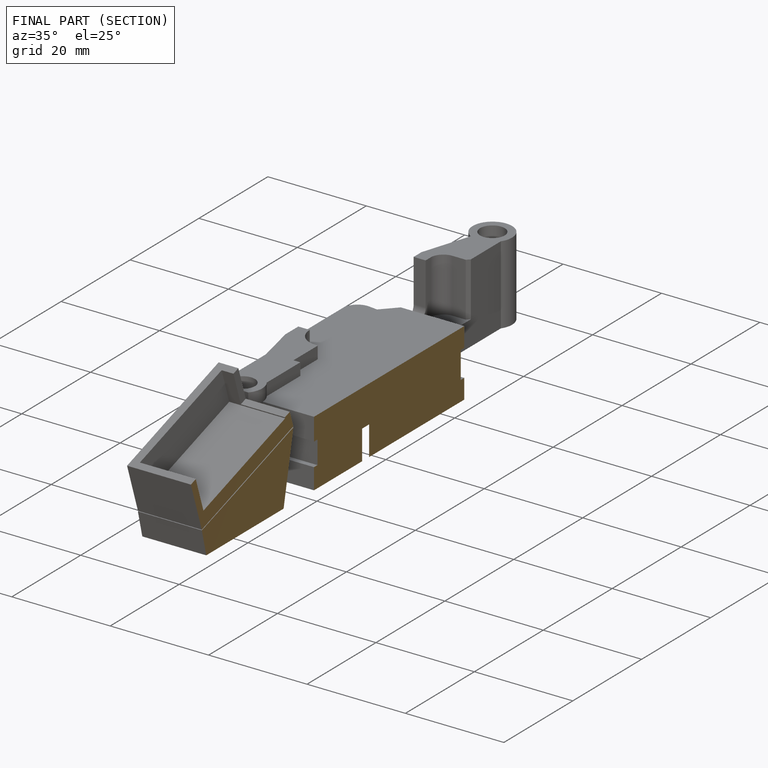
[diagram: finished part — half-section view (interior)]
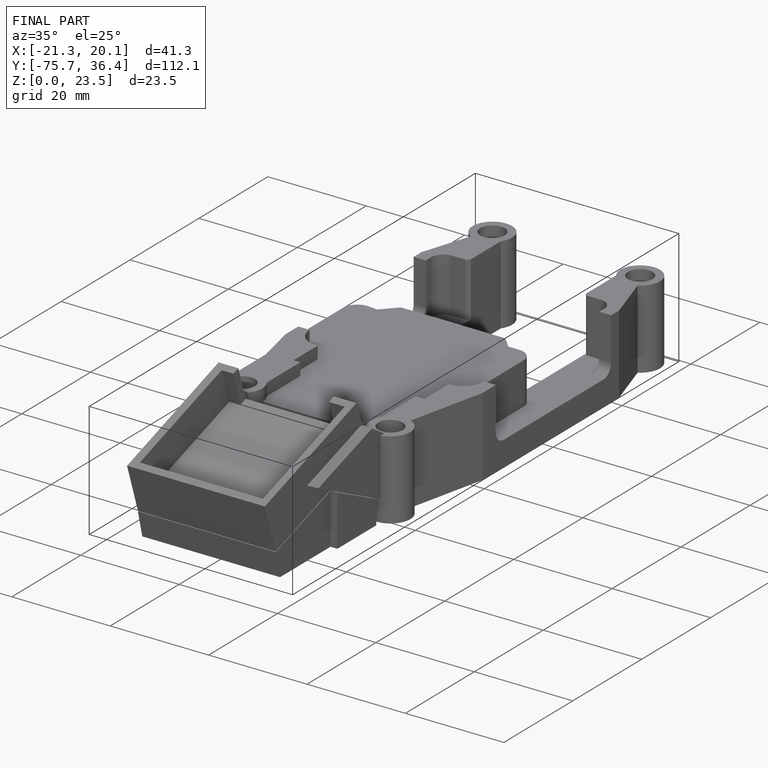
[diagram: finished part — iso view with bounding-box wireframe]
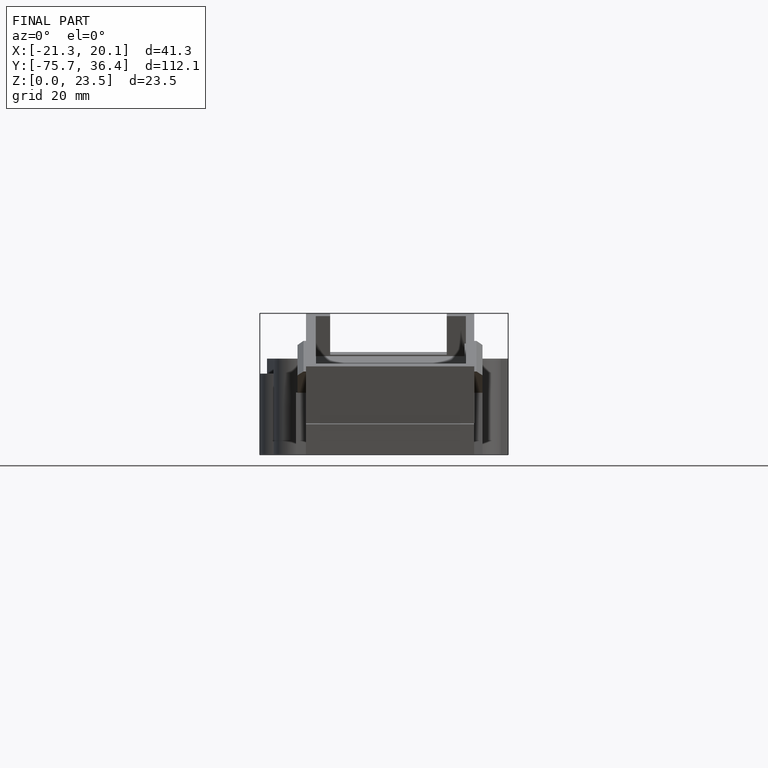
[diagram: finished part — front view with bounding-box wireframe]
